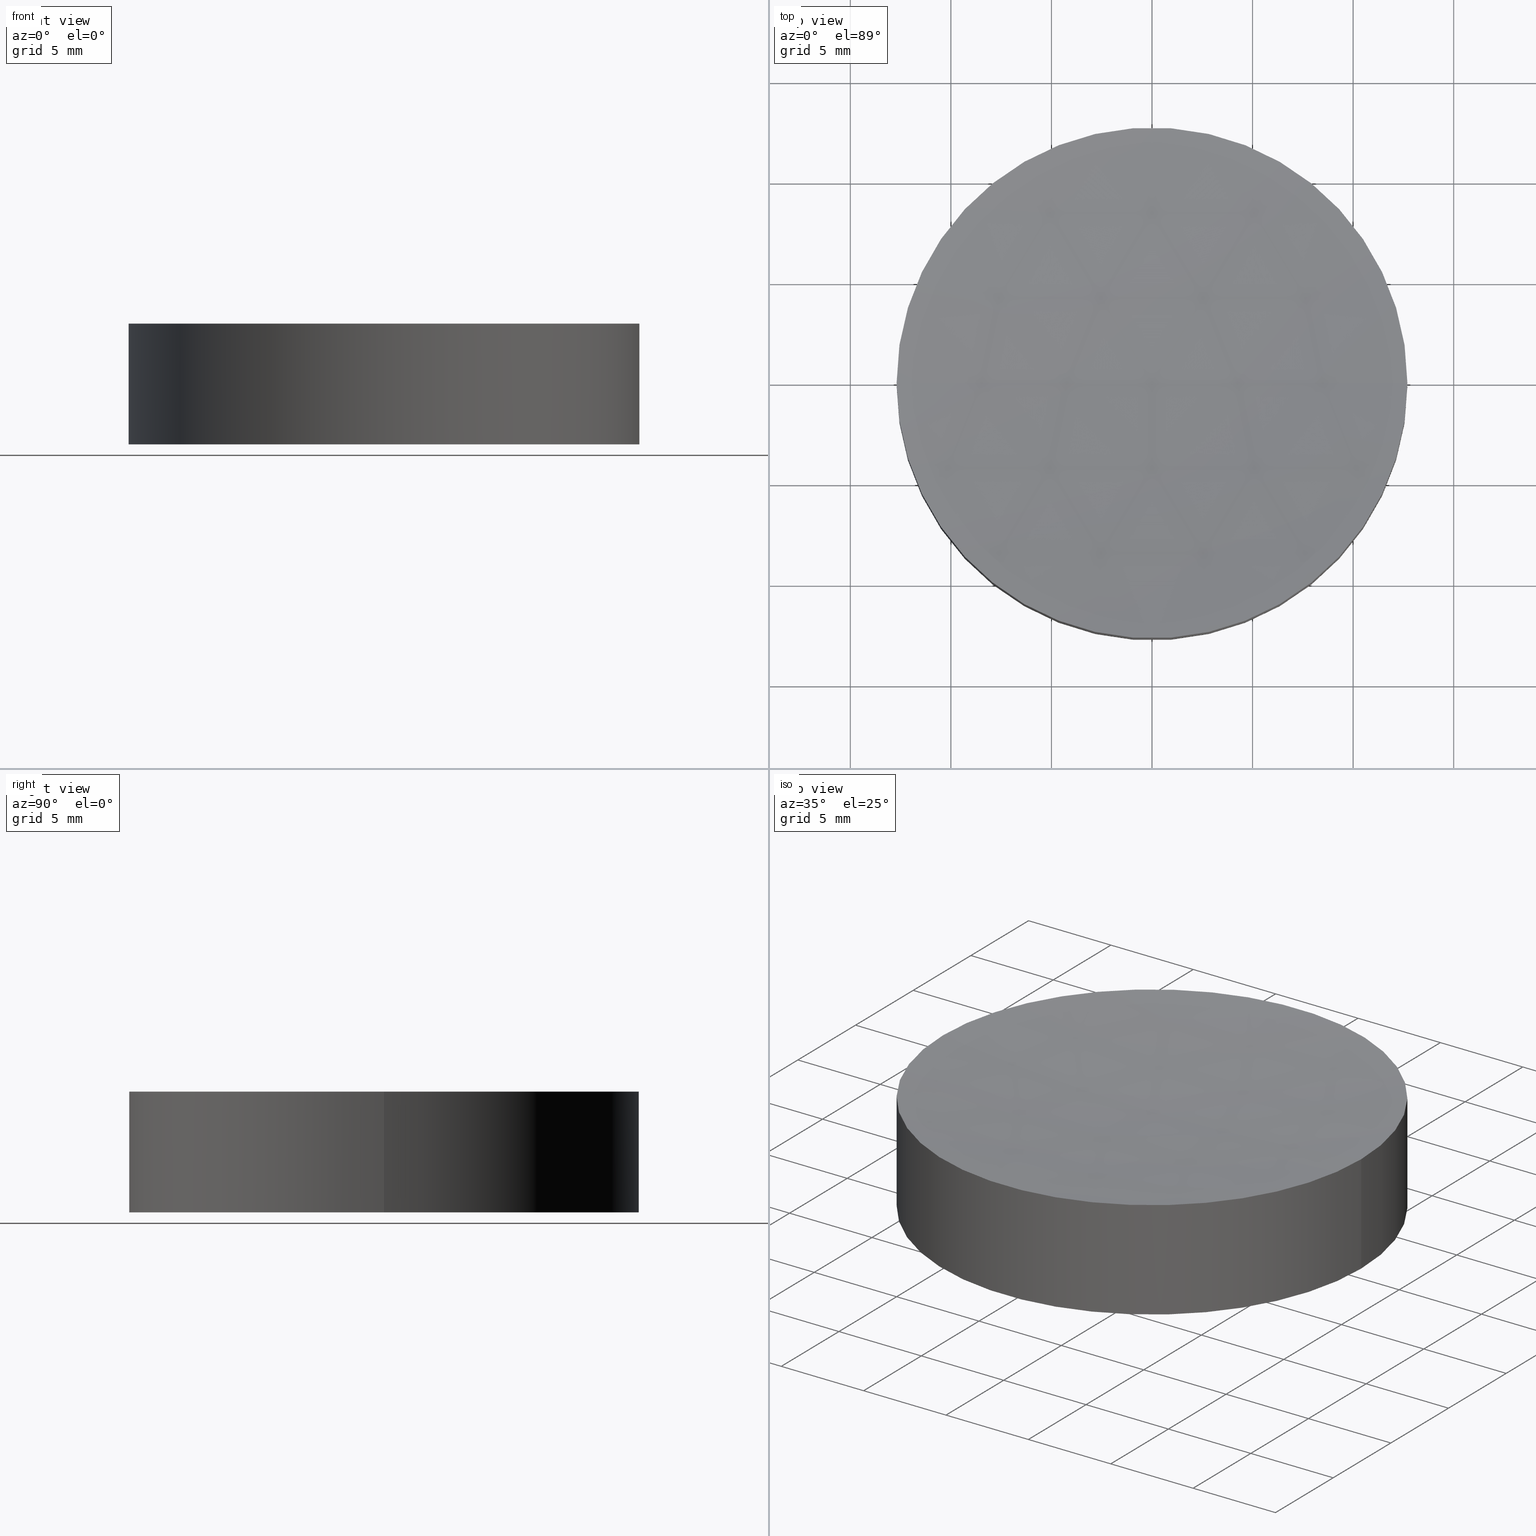
[diagram: canonical four-view strip — front | top / right | iso, engineering-drawing reading convention]
A machine part, canonical four-view strip (front | top / right | iso — engineering-drawing reading convention). The complete STEP part file that produces these views, byte-faithful:
ISO-10303-21;
HEADER;
FILE_DESCRIPTION (( 'STEP AP203' ),
    '1' );
FILE_NAME ('010-0202E_N-BK7_PCV_mirror.STEP',
    '2021-02-25T10:51:09',
    ( '' ),
    ( '' ),
    'SwSTEP 2.0',
    'SolidWorks 2019',
    '' );
FILE_SCHEMA (( 'CONFIG_CONTROL_DESIGN' ));
ENDSEC;

DATA;
#1 = CC_DESIGN_PERSON_AND_ORGANIZATION_ASSIGNMENT ( #153, #74, ( #80 ) ) ;
#2 = APPROVAL_PERSON_ORGANIZATION ( #29, #180, #55 ) ;
#3 = DIRECTION ( 'NONE',  ( 1.000000000000000000, 1.224646799147353207E-16, 0.000000000000000000 ) ) ;
#4 = LOCAL_TIME ( 12, 51, 9.000000000000000000, #178 ) ;
#5 = CARTESIAN_POINT ( 'NONE',  ( 0.000000000000000000, 0.000000000000000000, 6.000000000000000000 ) ) ;
#6 = DIRECTION ( 'NONE',  ( -0.000000000000000000, -0.000000000000000000, -1.000000000000000000 ) ) ;
#7 = CC_DESIGN_SECURITY_CLASSIFICATION ( #110, ( #106 ) ) ;
#8 = ORIENTED_EDGE ( 'NONE', *, *, #97, .F. ) ;
#9 = APPROVAL_ROLE ( '' ) ;
#10 = ORIENTED_EDGE ( 'NONE', *, *, #109, .F. ) ;
#11 =( LENGTH_UNIT ( ) NAMED_UNIT ( * ) SI_UNIT ( .MILLI., .METRE. ) );
#12 = APPROVAL_STATUS ( 'not_yet_approved' ) ;
#13 = CC_DESIGN_DATE_AND_TIME_ASSIGNMENT ( #125, #79, ( #110 ) ) ;
#14 = DATE_AND_TIME ( #161, #17 ) ;
#15 = CC_DESIGN_APPROVAL ( #179, ( #171 ) ) ;
#16 = CALENDAR_DATE ( 2021, 25, 2 ) ;
#17 = LOCAL_TIME ( 12, 51, 9.000000000000000000, #93 ) ;
#18 = PERSON_AND_ORGANIZATION ( #88, #95 ) ;
#19 = VECTOR ( 'NONE', #131, 1000.000000000000000 ) ;
#20 = PRODUCT_DEFINITION_SHAPE ( 'NONE', 'NONE',  #171 ) ;
#21 = VERTEX_POINT ( 'NONE', #49 ) ;
#22 = CARTESIAN_POINT ( 'NONE',  ( 0.000000000000000000, 0.000000000000000000, 0.000000000000000000 ) ) ;
#23 = FACE_OUTER_BOUND ( 'NONE', #25, .T. ) ;
#24 = EDGE_CURVE ( 'NONE', #152, #21, #32, .T. ) ;
#25 = EDGE_LOOP ( 'NONE', ( #101, #73 ) ) ;
#26 = DIRECTION ( 'NONE',  ( 1.000000000000000000, 0.000000000000000000, 0.000000000000000000 ) ) ;
#27 = ADVANCED_FACE ( 'NONE', ( #159 ), #148, .F. ) ;
#28 = CALENDAR_DATE ( 2021, 25, 2 ) ;
#29 = PERSON_AND_ORGANIZATION ( #88, #95 ) ;
#30 = PERSON_AND_ORGANIZATION_ROLE ( 'classification_officer' ) ;
#31 = MANIFOLD_SOLID_BREP ( 'Cut-Revolve1', #99 ) ;
#32 = CIRCLE ( 'NONE', #81, 12.69999999999999929 ) ;
#33 = APPROVAL_ROLE ( '' ) ;
#34 = CIRCLE ( 'NONE', #154, 12.69999999999999929 ) ;
#35 = EDGE_CURVE ( 'NONE', #21, #152, #34, .T. ) ;
#36 = DIRECTION ( 'NONE',  ( 0.000000000000000000, 0.000000000000000000, 1.000000000000000000 ) ) ;
#37 = CARTESIAN_POINT ( 'NONE',  ( -12.69999999999999929, 0.000000000000000000, 0.000000000000000000 ) ) ;
#38 = ORIENTED_EDGE ( 'NONE', *, *, #94, .T. ) ;
#39 = EDGE_CURVE ( 'NONE', #87, #42, #59, .T. ) ;
#40 = CARTESIAN_POINT ( 'NONE',  ( 12.70000000000000284, 1.555301434917138827E-15, 6.000000000000005329 ) ) ;
#41 = CARTESIAN_POINT ( 'NONE',  ( 1.387778780781445676E-14, 0.000000000000000000, 105.1902717004041818 ) ) ;
#42 = VERTEX_POINT ( 'NONE', #112 ) ;
#43 =( GEOMETRIC_REPRESENTATION_CONTEXT ( 3 ) GLOBAL_UNCERTAINTY_ASSIGNED_CONTEXT ( ( #62 ) ) GLOBAL_UNIT_ASSIGNED_CONTEXT ( ( #11, #103, #108 ) ) REPRESENTATION_CONTEXT ( 'NONE', 'WORKASPACE' ) );
#44 = DIRECTION ( 'NONE',  ( 0.000000000000000000, 0.000000000000000000, 1.000000000000000000 ) ) ;
#45 = PERSON_AND_ORGANIZATION ( #88, #95 ) ;
#46 = ADVANCED_FACE ( 'NONE', ( #90 ), #111, .T. ) ;
#47 = DIRECTION ( 'NONE',  ( 0.000000000000000000, 0.000000000000000000, 1.000000000000000000 ) ) ;
#48 = CARTESIAN_POINT ( 'NONE',  ( -12.69999999999997264, 0.000000000000000000, 6.000000000000005329 ) ) ;
#49 = CARTESIAN_POINT ( 'NONE',  ( 12.69999999999999929, 1.555301434917138433E-15, 0.000000000000000000 ) ) ;
#50 = DIRECTION ( 'NONE',  ( -0.000000000000000000, -0.000000000000000000, -1.000000000000000000 ) ) ;
#51 = VERTEX_POINT ( 'NONE', #40 ) ;
#52 = FACE_OUTER_BOUND ( 'NONE', #68, .T. ) ;
#53 = ORIENTED_EDGE ( 'NONE', *, *, #160, .T. ) ;
#54 = FACE_OUTER_BOUND ( 'NONE', #84, .T. ) ;
#55 = APPROVAL_ROLE ( '' ) ;
#56 = CARTESIAN_POINT ( 'NONE',  ( 0.000000000000000000, 0.000000000000000000, 0.000000000000000000 ) ) ;
#57 = DIRECTION ( 'NONE',  ( 1.000000000000000000, 0.000000000000000000, -0.000000000000000000 ) ) ;
#58 = APPLICATION_PROTOCOL_DEFINITION ( 'international standard', 'config_control_design', 1994, #92 ) ;
#59 = CIRCLE ( 'NONE', #190, 100.0000000000000000 ) ;
#60 = SECURITY_CLASSIFICATION_LEVEL ( 'unclassified' ) ;
#61 = APPROVAL_STATUS ( 'not_yet_approved' ) ;
#62 = UNCERTAINTY_MEASURE_WITH_UNIT (LENGTH_MEASURE( 1.000000000000000082E-05 ), #11, 'distance_accuracy_value', 'NONE');
#63 = PRODUCT_RELATED_PRODUCT_CATEGORY ( 'detail', '', ( #80 ) ) ;
#64 = CYLINDRICAL_SURFACE ( 'NONE', #188, 12.69999999999999929 ) ;
#65 = ORIENTED_EDGE ( 'NONE', *, *, #66, .F. ) ;
#66 = EDGE_CURVE ( 'NONE', #51, #21, #126, .T. ) ;
#67 = CARTESIAN_POINT ( 'NONE',  ( -12.69999999999999929, 0.000000000000000000, 6.000000000000000000 ) ) ;
#68 = EDGE_LOOP ( 'NONE', ( #65, #53, #134, #150 ) ) ;
#69 = DIRECTION ( 'NONE',  ( -1.000000000000000000, 0.000000000000000000, 0.000000000000000000 ) ) ;
#70 = EDGE_LOOP ( 'NONE', ( #191, #193, #169, #10 ) ) ;
#71 = VECTOR ( 'NONE', #166, 1000.000000000000000 ) ;
#72 = PERSON_AND_ORGANIZATION_ROLE ( 'creator' ) ;
#73 = ORIENTED_EDGE ( 'NONE', *, *, #35, .F. ) ;
#74 = PERSON_AND_ORGANIZATION_ROLE ( 'design_owner' ) ;
#75 = DIRECTION ( 'NONE',  ( 1.000000000000000000, 0.000000000000000000, 0.000000000000000000 ) ) ;
#76 = ADVANCED_FACE ( 'NONE', ( #52 ), #64, .T. ) ;
#77 = APPROVAL_DATE_TIME ( #14, #180 ) ;
#78 = PERSON_AND_ORGANIZATION_ROLE ( 'creator' ) ;
#79 = DATE_TIME_ROLE ( 'classification_date' ) ;
#80 = PRODUCT ( '010-0202E_N-BK7_PCV_mirror', '010-0202E_N-BK7_PCV_mirror', '', ( #185 ) ) ;
#81 = AXIS2_PLACEMENT_3D ( 'NONE', #56, #120, #186 ) ;
#82 = CIRCLE ( 'NONE', #107, 12.69999999999998685 ) ;
#83 = CARTESIAN_POINT ( 'NONE',  ( 1.387778780781445676E-14, 0.000000000000000000, 6.000000000000005329 ) ) ;
#84 = EDGE_LOOP ( 'NONE', ( #198, #184, #38 ) ) ;
#85 = LOCAL_TIME ( 12, 51, 9.000000000000000000, #143 ) ;
#86 = CARTESIAN_POINT ( 'NONE',  ( 1.387778780781445676E-14, 0.000000000000000000, 105.1902717004041818 ) ) ;
#87 = VERTEX_POINT ( 'NONE', #48 ) ;
#88 = PERSON ( 'UNSPECIFIED', 'UNSPECIFIED', 'UNSPECIFIED', ('UNSPECIFIED'), ('UNSPECIFIED'), ('UNSPECIFIED') ) ;
#89 = PLANE ( 'NONE',  #140 ) ;
#90 = FACE_OUTER_BOUND ( 'NONE', #70, .T. ) ;
#91 = DATE_AND_TIME ( #28, #157 ) ;
#92 = APPLICATION_CONTEXT ( 'configuration controlled 3d designs of mechanical parts and assemblies' ) ;
#93 = COORDINATED_UNIVERSAL_TIME_OFFSET ( 2, 0, .AHEAD. ) ;
#94 = EDGE_CURVE ( 'NONE', #51, #42, #177, .T. ) ;
#95 = ORGANIZATION ( 'UNSPECIFIED', 'UNSPECIFIED', '' ) ;
#96 = DIRECTION ( 'NONE',  ( 1.000000000000000000, 0.000000000000000000, 0.000000000000000000 ) ) ;
#97 = EDGE_CURVE ( 'NONE', #87, #51, #82, .T. ) ;
#98 = CARTESIAN_POINT ( 'NONE',  ( 1.387778780781445676E-14, 0.000000000000000000, 6.000000000000005329 ) ) ;
#99 = CLOSED_SHELL ( 'NONE', ( #27, #46, #76, #163, #189 ) ) ;
#100 = CC_DESIGN_DATE_AND_TIME_ASSIGNMENT ( #91, #156, ( #171 ) ) ;
#101 = ORIENTED_EDGE ( 'NONE', *, *, #24, .F. ) ;
#102 = DIRECTION ( 'NONE',  ( 1.224646799147353207E-16, -1.000000000000000000, 0.000000000000000000 ) ) ;
#103 =( NAMED_UNIT ( * ) PLANE_ANGLE_UNIT ( ) SI_UNIT ( $, .RADIAN. ) );
#104 = COORDINATED_UNIVERSAL_TIME_OFFSET ( 2, 0, .AHEAD. ) ;
#105 = DATE_AND_TIME ( #119, #162 ) ;
#106 = PRODUCT_DEFINITION_FORMATION_WITH_SPECIFIED_SOURCE ( 'ANY', '', #80, .NOT_KNOWN. ) ;
#107 = AXIS2_PLACEMENT_3D ( 'NONE', #83, #167, #96 ) ;
#108 =( NAMED_UNIT ( * ) SI_UNIT ( $, .STERADIAN. ) SOLID_ANGLE_UNIT ( ) );
#109 = EDGE_CURVE ( 'NONE', #87, #152, #127, .T. ) ;
#110 = SECURITY_CLASSIFICATION ( '', '', #60 ) ;
#111 = CYLINDRICAL_SURFACE ( 'NONE', #146, 12.69999999999999929 ) ;
#112 = CARTESIAN_POINT ( 'NONE',  ( 2.000102180355122047E-14, 0.000000000000000000, 5.190271700404175625 ) ) ;
#113 = DIRECTION ( 'NONE',  ( -0.000000000000000000, -0.000000000000000000, -1.000000000000000000 ) ) ;
#114 = CC_DESIGN_PERSON_AND_ORGANIZATION_ASSIGNMENT ( #199, #72, ( #171 ) ) ;
#115 = CARTESIAN_POINT ( 'NONE',  ( 1.387778780781445676E-14, 0.000000000000000000, 105.1902717004041818 ) ) ;
#116 = CC_DESIGN_APPROVAL ( #144, ( #110 ) ) ;
#117 = COORDINATED_UNIVERSAL_TIME_OFFSET ( 2, 0, .AHEAD. ) ;
#118 = CC_DESIGN_PERSON_AND_ORGANIZATION_ASSIGNMENT ( #124, #164, ( #106 ) ) ;
#119 = CALENDAR_DATE ( 2021, 25, 2 ) ;
#120 = DIRECTION ( 'NONE',  ( 0.000000000000000000, 0.000000000000000000, 1.000000000000000000 ) ) ;
#121 = ADVANCED_BREP_SHAPE_REPRESENTATION ( '010-0202E_N-BK7_PCV_mirror', ( #31, #135 ), #43 ) ;
#122 = CC_DESIGN_PERSON_AND_ORGANIZATION_ASSIGNMENT ( #18, #30, ( #110 ) ) ;
#123 = AXIS2_PLACEMENT_3D ( 'NONE', #115, #197, #168 ) ;
#124 = PERSON_AND_ORGANIZATION ( #88, #95 ) ;
#125 = DATE_AND_TIME ( #201, #85 ) ;
#126 = LINE ( 'NONE', #151, #71 ) ;
#127 = LINE ( 'NONE', #67, #19 ) ;
#128 = DIRECTION ( 'NONE',  ( 1.000000000000000000, 0.000000000000000000, 0.000000000000000000 ) ) ;
#129 = ORIENTED_EDGE ( 'NONE', *, *, #39, .T. ) ;
#130 = CC_DESIGN_APPROVAL ( #180, ( #106 ) ) ;
#131 = DIRECTION ( 'NONE',  ( -0.000000000000000000, -0.000000000000000000, -1.000000000000000000 ) ) ;
#132 = CIRCLE ( 'NONE', #170, 12.69999999999998685 ) ;
#133 = ORIENTED_EDGE ( 'NONE', *, *, #94, .F. ) ;
#134 = ORIENTED_EDGE ( 'NONE', *, *, #109, .T. ) ;
#135 = AXIS2_PLACEMENT_3D ( 'NONE', #172, #44, #26 ) ;
#136 = APPLICATION_PROTOCOL_DEFINITION ( 'international standard', 'config_control_design', 1994, #173 ) ;
#137 = CARTESIAN_POINT ( 'NONE',  ( 1.387778780781445676E-14, 0.000000000000000000, 105.1902717004041818 ) ) ;
#138 = CC_DESIGN_PERSON_AND_ORGANIZATION_ASSIGNMENT ( #139, #78, ( #106 ) ) ;
#139 = PERSON_AND_ORGANIZATION ( #88, #95 ) ;
#140 = AXIS2_PLACEMENT_3D ( 'NONE', #195, #155, #57 ) ;
#141 = SHAPE_DEFINITION_REPRESENTATION ( #20, #121 ) ;
#142 = APPROVAL_DATE_TIME ( #147, #144 ) ;
#143 = COORDINATED_UNIVERSAL_TIME_OFFSET ( 2, 0, .AHEAD. ) ;
#144 = APPROVAL ( #61, 'UNSPECIFIED' ) ;
#145 = APPROVAL_PERSON_ORGANIZATION ( #45, #144, #33 ) ;
#146 = AXIS2_PLACEMENT_3D ( 'NONE', #5, #50, #69 ) ;
#147 = DATE_AND_TIME ( #16, #4 ) ;
#148 = SPHERICAL_SURFACE ( 'NONE', #123, 100.0000000000000000 ) ;
#149 = EDGE_LOOP ( 'NONE', ( #8, #129, #133 ) ) ;
#150 = ORIENTED_EDGE ( 'NONE', *, *, #24, .T. ) ;
#151 = CARTESIAN_POINT ( 'NONE',  ( 12.69999999999999929, 1.555301434917138433E-15, 6.000000000000000000 ) ) ;
#152 = VERTEX_POINT ( 'NONE', #37 ) ;
#153 = PERSON_AND_ORGANIZATION ( #88, #95 ) ;
#154 = AXIS2_PLACEMENT_3D ( 'NONE', #22, #47, #183 ) ;
#155 = DIRECTION ( 'NONE',  ( 0.000000000000000000, 0.000000000000000000, 1.000000000000000000 ) ) ;
#156 = DATE_TIME_ROLE ( 'creation_date' ) ;
#157 = LOCAL_TIME ( 12, 51, 9.000000000000000000, #104 ) ;
#158 = APPROVAL_DATE_TIME ( #105, #179 ) ;
#159 = FACE_OUTER_BOUND ( 'NONE', #149, .T. ) ;
#160 = EDGE_CURVE ( 'NONE', #51, #87, #132, .T. ) ;
#161 = CALENDAR_DATE ( 2021, 25, 2 ) ;
#162 = LOCAL_TIME ( 12, 51, 9.000000000000000000, #117 ) ;
#163 = ADVANCED_FACE ( 'NONE', ( #23 ), #89, .F. ) ;
#164 = PERSON_AND_ORGANIZATION_ROLE ( 'design_supplier' ) ;
#165 = AXIS2_PLACEMENT_3D ( 'NONE', #86, #181, #36 ) ;
#166 = DIRECTION ( 'NONE',  ( -0.000000000000000000, -0.000000000000000000, -1.000000000000000000 ) ) ;
#167 = DIRECTION ( 'NONE',  ( -0.000000000000000000, -0.000000000000000000, -1.000000000000000000 ) ) ;
#168 = DIRECTION ( 'NONE',  ( 1.000000000000000000, 0.000000000000000000, 0.000000000000000000 ) ) ;
#169 = ORIENTED_EDGE ( 'NONE', *, *, #35, .T. ) ;
#170 = AXIS2_PLACEMENT_3D ( 'NONE', #98, #6, #128 ) ;
#171 = PRODUCT_DEFINITION ( 'UNKNOWN', '', #106, #196 ) ;
#172 = CARTESIAN_POINT ( 'NONE',  ( 0.000000000000000000, 0.000000000000000000, 0.000000000000000000 ) ) ;
#173 = APPLICATION_CONTEXT ( 'configuration controlled 3d designs of mechanical parts and assemblies' ) ;
#174 = PERSON_AND_ORGANIZATION ( #88, #95 ) ;
#175 = AXIS2_PLACEMENT_3D ( 'NONE', #137, #187, #75 ) ;
#176 = APPROVAL_STATUS ( 'not_yet_approved' ) ;
#177 = CIRCLE ( 'NONE', #165, 100.0000000000000000 ) ;
#178 = COORDINATED_UNIVERSAL_TIME_OFFSET ( 2, 0, .AHEAD. ) ;
#179 = APPROVAL ( #176, 'UNSPECIFIED' ) ;
#180 = APPROVAL ( #12, 'UNSPECIFIED' ) ;
#181 = DIRECTION ( 'NONE',  ( 0.000000000000000000, 1.000000000000000000, -0.000000000000000000 ) ) ;
#182 = DIRECTION ( 'NONE',  ( -1.000000000000000000, 0.000000000000000000, 0.000000000000000000 ) ) ;
#183 = DIRECTION ( 'NONE',  ( 1.000000000000000000, 0.000000000000000000, 0.000000000000000000 ) ) ;
#184 = ORIENTED_EDGE ( 'NONE', *, *, #160, .F. ) ;
#185 = MECHANICAL_CONTEXT ( 'NONE', #92, 'mechanical' ) ;
#186 = DIRECTION ( 'NONE',  ( 1.000000000000000000, 0.000000000000000000, 0.000000000000000000 ) ) ;
#187 = DIRECTION ( 'NONE',  ( 0.000000000000000000, -1.000000000000000000, -0.000000000000000000 ) ) ;
#188 = AXIS2_PLACEMENT_3D ( 'NONE', #192, #113, #182 ) ;
#189 = ADVANCED_FACE ( 'NONE', ( #54 ), #200, .F. ) ;
#190 = AXIS2_PLACEMENT_3D ( 'NONE', #41, #102, #3 ) ;
#191 = ORIENTED_EDGE ( 'NONE', *, *, #97, .T. ) ;
#192 = CARTESIAN_POINT ( 'NONE',  ( 0.000000000000000000, 0.000000000000000000, 6.000000000000000000 ) ) ;
#193 = ORIENTED_EDGE ( 'NONE', *, *, #66, .T. ) ;
#194 = APPROVAL_PERSON_ORGANIZATION ( #174, #179, #9 ) ;
#195 = CARTESIAN_POINT ( 'NONE',  ( 0.000000000000000000, 0.000000000000000000, 0.000000000000000000 ) ) ;
#196 = DESIGN_CONTEXT ( 'detailed design', #173, 'design' ) ;
#197 = DIRECTION ( 'NONE',  ( 0.000000000000000000, -1.000000000000000000, -0.000000000000000000 ) ) ;
#198 = ORIENTED_EDGE ( 'NONE', *, *, #39, .F. ) ;
#199 = PERSON_AND_ORGANIZATION ( #88, #95 ) ;
#200 = SPHERICAL_SURFACE ( 'NONE', #175, 100.0000000000000000 ) ;
#201 = CALENDAR_DATE ( 2021, 25, 2 ) ;
ENDSEC;
END-ISO-10303-21;
